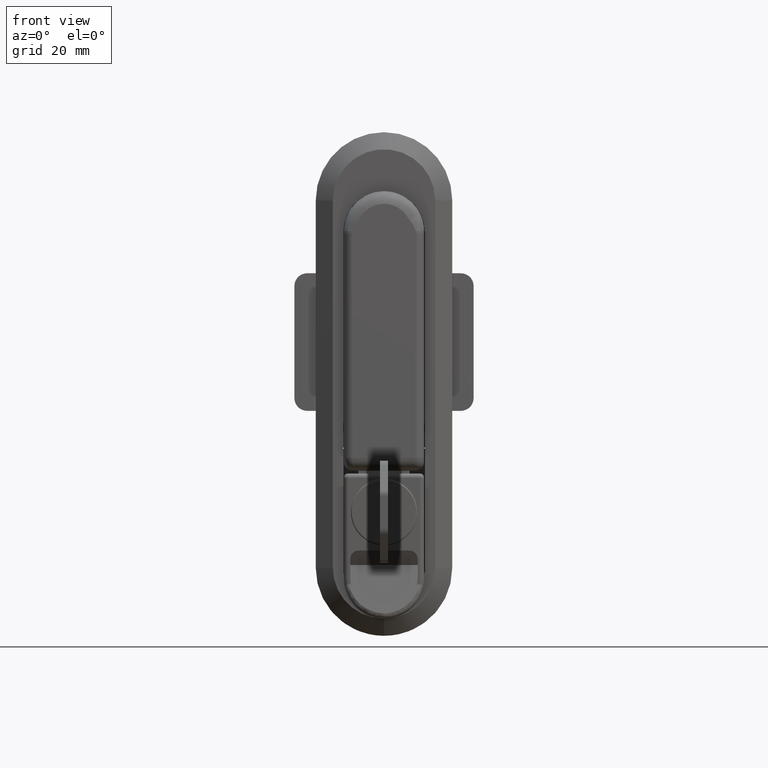
[diagram: clean part render]
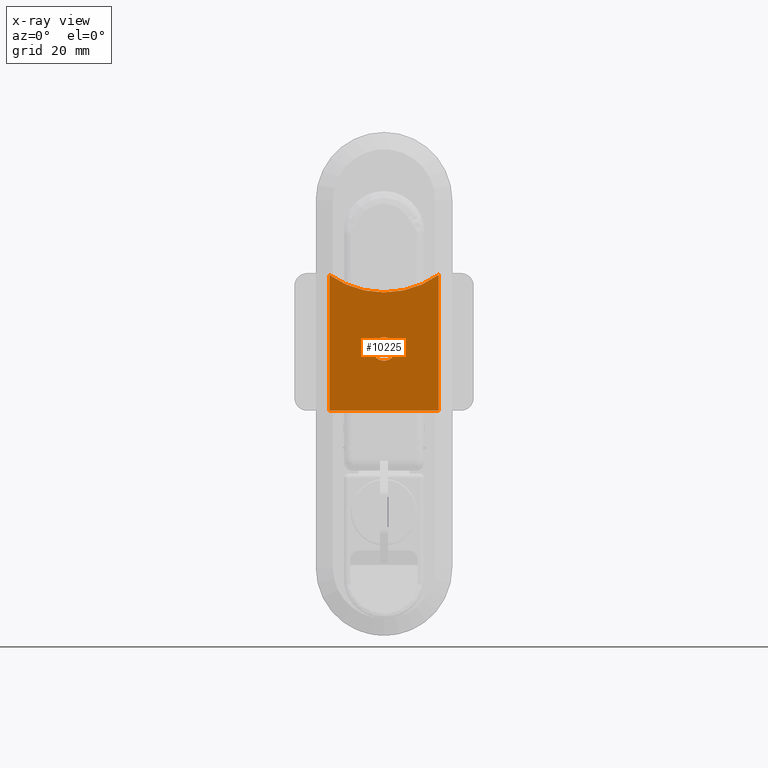
[diagram: x-ray — body ghosted, one internal face saturated and labeled with its STEP entity id]
A machine part, front view, then the same camera in x-ray: the body is ghosted and one INTERNAL B-rep face — a face not visible from any outside direction — is saturated and labeled: STEP entity #10225.
In plain terms, the highlighted planar face has unit normal (0, 1, 0).
Its self-contained STEP definition (entity closure, byte-faithful):
#4931 = AXIS2_PLACEMENT_3D ( 'NONE', #4995, #4994, #4993 ) ;
#4932 = CIRCLE ( 'NONE', #4931, 2.749999999999999100 ) ;
#4933 = DIRECTION ( 'NONE',  ( 0.0000000000000000000, 0.0000000000000000000, -1.000000000000000000 ) ) ;
#4934 = DIRECTION ( 'NONE',  ( 1.000000000000000000, 0.0000000000000000000, 0.0000000000000000000 ) ) ;
#4935 = CARTESIAN_POINT ( 'NONE',  ( 8.499999999999911200, -12.33137299999991900, -1009.250000000000000 ) ) ;
#4936 = AXIS2_PLACEMENT_3D ( 'NONE', #4935, #4934, #4933 ) ;
#4937 = PLANE ( 'NONE',  #4936 ) ;
#4938 = FACE_OUTER_BOUND ( 'NONE', #10230, .T. ) ;
#4939 = FACE_BOUND ( 'NONE', #10226, .T. ) ;
#4989 = DIRECTION ( 'NONE',  ( 0.0000000000000000000, 1.000000000000000000, 0.0000000000000000000 ) ) ;
#4990 = VECTOR ( 'NONE', #4989, 1000.000000000000000 ) ;
#4991 = CARTESIAN_POINT ( 'NONE',  ( 8.499999999999911200, 0.0000000000000000000, -41.50000000000000000 ) ) ;
#4992 = LINE ( 'NONE', #4991, #4990 ) ;
#4993 = DIRECTION ( 'NONE',  ( 0.0000000000000000000, 0.0000000000000000000, -1.000000000000000000 ) ) ;
#4994 = DIRECTION ( 'NONE',  ( 1.000000000000000000, 0.0000000000000000000, 0.0000000000000000000 ) ) ;
#4995 = CARTESIAN_POINT ( 'NONE',  ( 8.500000000000000000, 0.0000000000000000000, -27.00000000000000000 ) ) ;
#5072 = DIRECTION ( 'NONE',  ( 0.0000000000000000000, 0.0000000000000000000, 1.000000000000000000 ) ) ;
#5073 = VECTOR ( 'NONE', #5072, 1000.000000000000000 ) ;
#5074 = CARTESIAN_POINT ( 'NONE',  ( 8.500000000000000000, 12.83545241909143900, -1009.250000000000000 ) ) ;
#5075 = LINE ( 'NONE', #5074, #5073 ) ;
#5076 = DIRECTION ( 'NONE',  ( 0.0000000000000000000, 0.0000000000000000000, -1.000000000000000000 ) ) ;
#5077 = DIRECTION ( 'NONE',  ( 1.000000000000000000, 0.0000000000000000000, 0.0000000000000000000 ) ) ;
#5078 = CARTESIAN_POINT ( 'NONE',  ( 8.500000000000000000, 0.0000000000000000000, 8.250000000000000000 ) ) ;
#5079 = AXIS2_PLACEMENT_3D ( 'NONE', #5078, #5077, #5076 ) ;
#5080 = CIRCLE ( 'NONE', #5079, 22.00000000000000000 ) ;
#5081 = CARTESIAN_POINT ( 'NONE',  ( 8.499999999999579000, -12.83545241909170000, -9.617600879727250500 ) ) ;
#5082 = DIRECTION ( 'NONE',  ( 0.0000000000000000000, 0.0000000000000000000, 1.000000000000000000 ) ) ;
#5083 = VECTOR ( 'NONE', #5082, 1000.000000000000000 ) ;
#5084 = CARTESIAN_POINT ( 'NONE',  ( 8.499999999999579000, -12.83545241909170000, -1009.250000000000000 ) ) ;
#5085 = LINE ( 'NONE', #5084, #5083 ) ;
#5086 = CARTESIAN_POINT ( 'NONE',  ( 8.500000000000000000, 12.83545241909143900, -41.50000000000000000 ) ) ;
#5087 = CARTESIAN_POINT ( 'NONE',  ( 8.499999999999579000, -12.83545241909170000, -41.50000000000000000 ) ) ;
#5736 = CARTESIAN_POINT ( 'NONE',  ( 8.500000000000000000, 3.367778697655222000E-016, -24.25000000000000000 ) ) ;
#5737 = DIRECTION ( 'NONE',  ( 0.0000000000000000000, 0.0000000000000000000, -1.000000000000000000 ) ) ;
#5738 = DIRECTION ( 'NONE',  ( 1.000000000000000000, 0.0000000000000000000, 0.0000000000000000000 ) ) ;
#5739 = CARTESIAN_POINT ( 'NONE',  ( 8.500000000000000000, 0.0000000000000000000, -27.00000000000000000 ) ) ;
#5740 = AXIS2_PLACEMENT_3D ( 'NONE', #5739, #5738, #5737 ) ;
#5741 = CIRCLE ( 'NONE', #5740, 2.749999999999999100 ) ;
#5742 = CARTESIAN_POINT ( 'NONE',  ( 8.500000000000000000, 0.0000000000000000000, -29.75000000000000000 ) ) ;
#5764 = CARTESIAN_POINT ( 'NONE',  ( 8.500000000000000000, 0.0000000000000000000, -13.74999999999999800 ) ) ;
#5765 = DIRECTION ( 'NONE',  ( 0.0000000000000000000, 0.0000000000000000000, -1.000000000000000000 ) ) ;
#5766 = DIRECTION ( 'NONE',  ( 1.000000000000000000, 0.0000000000000000000, 0.0000000000000000000 ) ) ;
#5767 = CARTESIAN_POINT ( 'NONE',  ( 8.500000000000000000, 0.0000000000000000000, 8.250000000000000000 ) ) ;
#5768 = AXIS2_PLACEMENT_3D ( 'NONE', #5767, #5766, #5765 ) ;
#5769 = CIRCLE ( 'NONE', #5768, 22.00000000000000000 ) ;
#5770 = CARTESIAN_POINT ( 'NONE',  ( 8.500000000000000000, 12.83545241909143900, -9.617600879727419300 ) ) ;
#10225 = ADVANCED_FACE ( 'NONE', ( #4939, #4938 ), #4937, .F. ) ;
#10226 = EDGE_LOOP ( 'NONE', ( #10227, #10229 ) ) ;
#10227 = ORIENTED_EDGE ( 'NONE', *, *, #10228, .T. ) ;
#10228 = EDGE_CURVE ( 'NONE', #12263, #12265, #4932, .T. ) ;
#10229 = ORIENTED_EDGE ( 'NONE', *, *, #12264, .T. ) ;
#10230 = EDGE_LOOP ( 'NONE', ( #10231, #10289, #10292, #10294, #10295 ) ) ;
#10231 = ORIENTED_EDGE ( 'NONE', *, *, #10232, .F. ) ;
#10232 = EDGE_CURVE ( 'NONE', #10287, #10288, #4992, .T. ) ;
#10287 = VERTEX_POINT ( 'NONE', #5087 ) ;
#10288 = VERTEX_POINT ( 'NONE', #5086 ) ;
#10289 = ORIENTED_EDGE ( 'NONE', *, *, #10290, .T. ) ;
#10290 = EDGE_CURVE ( 'NONE', #10287, #10291, #5085, .T. ) ;
#10291 = VERTEX_POINT ( 'NONE', #5081 ) ;
#10292 = ORIENTED_EDGE ( 'NONE', *, *, #10293, .T. ) ;
#10293 = EDGE_CURVE ( 'NONE', #10291, #12288, #5080, .T. ) ;
#10294 = ORIENTED_EDGE ( 'NONE', *, *, #12284, .T. ) ;
#10295 = ORIENTED_EDGE ( 'NONE', *, *, #10296, .F. ) ;
#10296 = EDGE_CURVE ( 'NONE', #10288, #12287, #5075, .T. ) ;
#12263 = VERTEX_POINT ( 'NONE', #5742 ) ;
#12264 = EDGE_CURVE ( 'NONE', #12265, #12263, #5741, .T. ) ;
#12265 = VERTEX_POINT ( 'NONE', #5736 ) ;
#12284 = EDGE_CURVE ( 'NONE', #12288, #12287, #5769, .T. ) ;
#12287 = VERTEX_POINT ( 'NONE', #5770 ) ;
#12288 = VERTEX_POINT ( 'NONE', #5764 ) ;